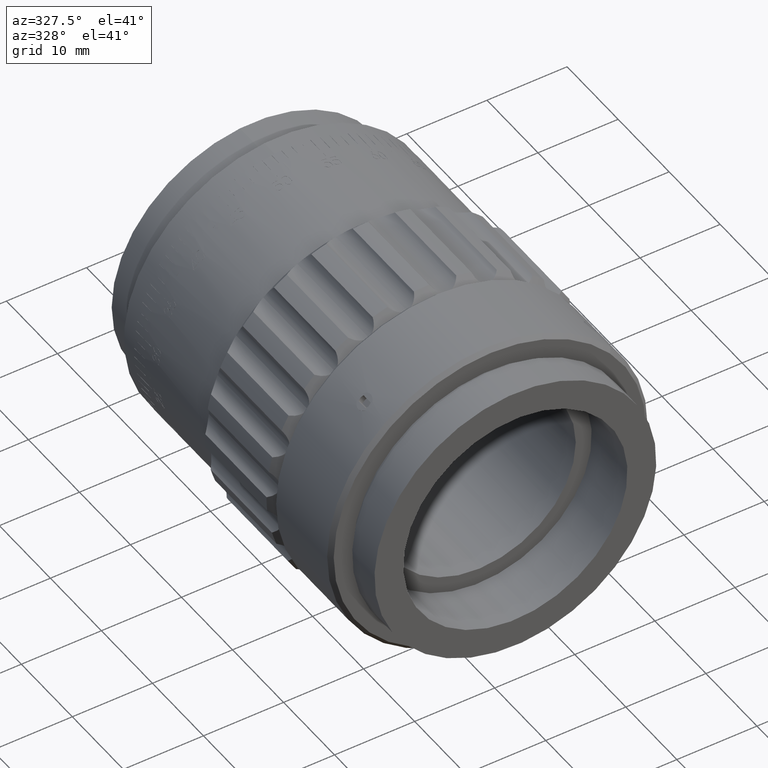
[diagram: clean part render]
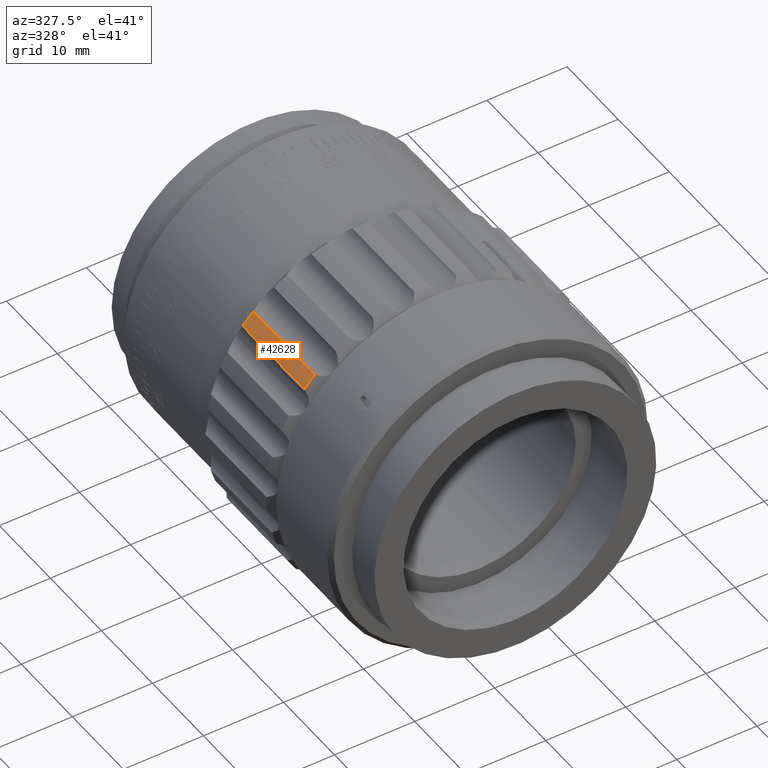
[diagram: same view with one face highlighted and labeled with its STEP entity id]
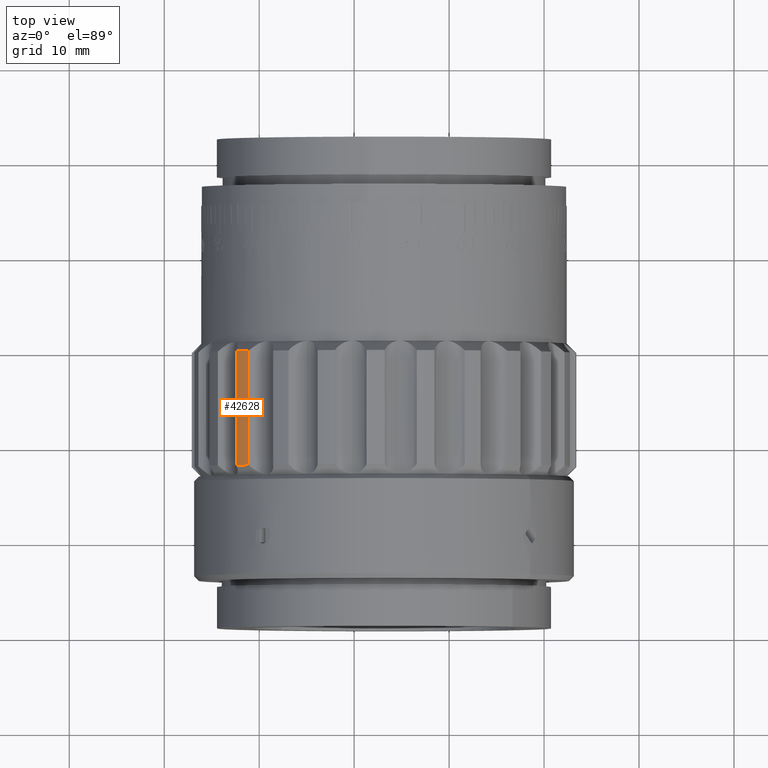
[diagram: same view with one face highlighted and labeled with its STEP entity id]
A machine part, auxiliary view. The second image highlights one B-rep face of the part: STEP entity #42628.
A second angle (top view) of the same face is appended — the face is thin or edge-on in the first view.
In plain terms, the highlighted cylindrical surface (partial cylindrical patch) has radius 20.25 mm, axis along (0, -1, 0).
Its self-contained STEP definition (entity closure, byte-faithful):
#2493 = EDGE_CURVE ( 'NONE', #49659, #104684, #91304, .T. ) ;
#5478 = CARTESIAN_POINT ( 'NONE',  ( -16.63121748445422200, -15.71457821189758900, -11.55270985460919200 ) ) ;
#8367 = CARTESIAN_POINT ( 'NONE',  ( -15.46353664040990400, -15.71457821189758900, -13.07446115794836500 ) ) ;
#8379 = VERTEX_POINT ( 'NONE', #61857 ) ;
#9442 = EDGE_LOOP ( 'NONE', ( #88136, #45600, #62102, #107231 ) ) ;
#16870 = CARTESIAN_POINT ( 'NONE',  ( 0.0000000000000000000, -27.21457821189758500, 0.0000000000000000000 ) ) ;
#17319 = AXIS2_PLACEMENT_3D ( 'NONE', #16870, #24951, #49440 ) ;
#20437 = FACE_OUTER_BOUND ( 'NONE', #9442, .T. ) ;
#24951 = DIRECTION ( 'NONE',  ( 0.0000000000000000000, 1.000000000000000000, 0.0000000000000000000 ) ) ;
#25535 = AXIS2_PLACEMENT_3D ( 'NONE', #26779, #94496, #68837 ) ;
#26779 = CARTESIAN_POINT ( 'NONE',  ( 0.0000000000000000000, -15.21457821189761700, 0.0000000000000000000 ) ) ;
#36549 = CIRCLE ( 'NONE', #25535, 20.25000000000000000 ) ;
#42628 = ADVANCED_FACE ( 'NONE', ( #20437 ), #49205, .T. ) ;
#43266 = VERTEX_POINT ( 'NONE', #98716 ) ;
#45600 = ORIENTED_EDGE ( 'NONE', *, *, #65317, .T. ) ;
#45961 = CARTESIAN_POINT ( 'NONE',  ( -15.46353664040990100, -27.21457821189758500, -13.07446115794836500 ) ) ;
#46325 = CARTESIAN_POINT ( 'NONE',  ( -16.63121748445422200, -27.21457821189758500, -11.55270985460918900 ) ) ;
#49205 = CYLINDRICAL_SURFACE ( 'NONE', #90762, 20.25000000000000000 ) ;
#49440 = DIRECTION ( 'NONE',  ( 0.0000000000000000000, 0.0000000000000000000, 1.000000000000000000 ) ) ;
#49659 = VERTEX_POINT ( 'NONE', #45961 ) ;
#51543 = LINE ( 'NONE', #5478, #93498 ) ;
#61857 = CARTESIAN_POINT ( 'NONE',  ( -16.63121748445422600, -15.21457821189761700, -11.55270985460918400 ) ) ;
#62102 = ORIENTED_EDGE ( 'NONE', *, *, #64472, .F. ) ;
#64472 = EDGE_CURVE ( 'NONE', #49659, #43266, #69299, .T. ) ;
#64512 = DIRECTION ( 'NONE',  ( 0.0000000000000000000, -1.000000000000000000, 0.0000000000000000000 ) ) ;
#65317 = EDGE_CURVE ( 'NONE', #8379, #43266, #36549, .T. ) ;
#68837 = DIRECTION ( 'NONE',  ( 0.0000000000000000000, 0.0000000000000000000, -1.000000000000000000 ) ) ;
#69299 = LINE ( 'NONE', #8367, #91604 ) ;
#72439 = DIRECTION ( 'NONE',  ( 0.0000000000000000000, -1.000000000000000000, 0.0000000000000000000 ) ) ;
#75353 = DIRECTION ( 'NONE',  ( -0.0000000000000000000, 1.000000000000000000, -0.0000000000000000000 ) ) ;
#87130 = EDGE_CURVE ( 'NONE', #8379, #104684, #51543, .T. ) ;
#88136 = ORIENTED_EDGE ( 'NONE', *, *, #87130, .F. ) ;
#90762 = AXIS2_PLACEMENT_3D ( 'NONE', #90900, #64512, #99287 ) ;
#90900 = CARTESIAN_POINT ( 'NONE',  ( 0.0000000000000000000, -13.71457821189759100, 0.0000000000000000000 ) ) ;
#91304 = CIRCLE ( 'NONE', #17319, 20.25000000000000000 ) ;
#91604 = VECTOR ( 'NONE', #75353, 1000.000000000000000 ) ;
#93498 = VECTOR ( 'NONE', #72439, 1000.000000000000000 ) ;
#94496 = DIRECTION ( 'NONE',  ( -0.0000000000000000000, -1.000000000000000000, -0.0000000000000000000 ) ) ;
#98716 = CARTESIAN_POINT ( 'NONE',  ( -15.46353664040989900, -15.21457821189761700, -13.07446115794836500 ) ) ;
#99287 = DIRECTION ( 'NONE',  ( 0.0000000000000000000, 0.0000000000000000000, -1.000000000000000000 ) ) ;
#104684 = VERTEX_POINT ( 'NONE', #46325 ) ;
#107231 = ORIENTED_EDGE ( 'NONE', *, *, #2493, .T. ) ;